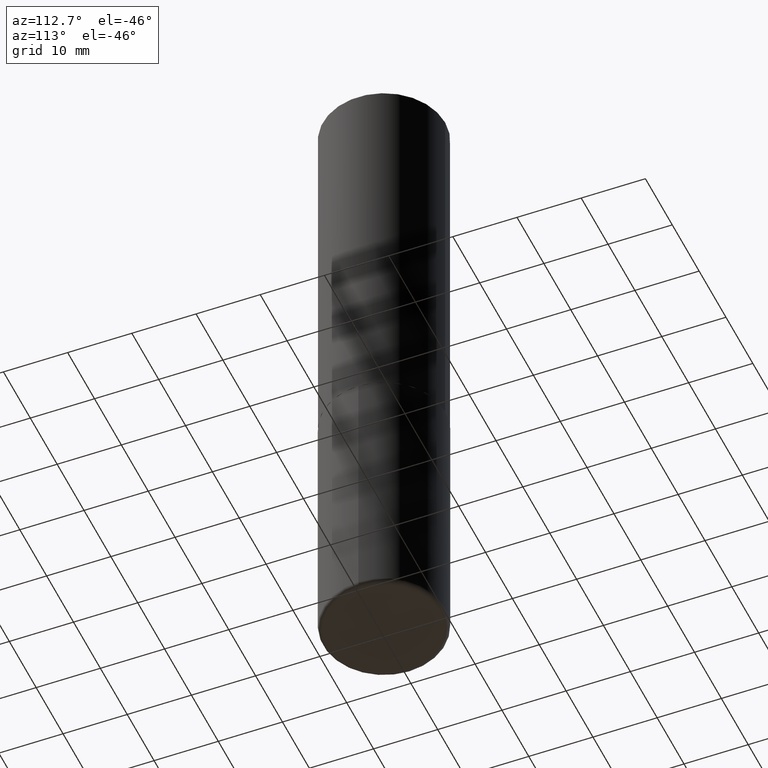
[diagram: clean part render]
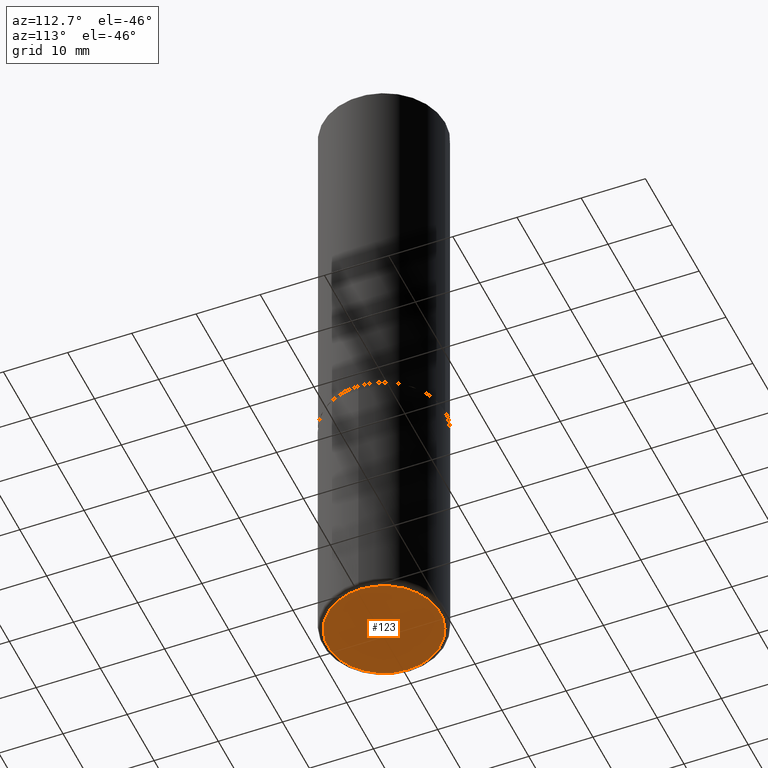
[diagram: same view with one face highlighted and labeled with its STEP entity id]
A machine part, auxiliary view. The second image highlights one B-rep face of the part: STEP entity #123.
In plain terms, the highlighted planar face has unit normal (0, -0, -1).
Its self-contained STEP definition (entity closure, byte-faithful):
#7 = CARTESIAN_POINT ( 'NONE',  ( 9.781875224740546387E-29, -1.396592535537258233E-14, -4.000000000000000000 ) ) ;
#32 = CARTESIAN_POINT ( 'NONE',  ( 9.781875224740546387E-29, -1.396592535537258233E-14, -4.000000000000000000 ) ) ;
#36 = AXIS2_PLACEMENT_3D ( 'NONE', #7, #137, #337 ) ;
#47 = EDGE_LOOP ( 'NONE', ( #170, #273 ) ) ;
#89 = CARTESIAN_POINT ( 'NONE',  ( -0.3450000000000000289, -1.135559928655357428E-14, -4.000000000000000000 ) ) ;
#123 = ADVANCED_FACE ( 'NONE', ( #324 ), #231, .T. ) ;
#126 = EDGE_CURVE ( 'NONE', #308, #183, #395, .T. ) ;
#137 = DIRECTION ( 'NONE',  ( -2.445468806185136597E-29, 3.491481338843145583E-15, 1.000000000000000000 ) ) ;
#146 = CARTESIAN_POINT ( 'NONE',  ( 9.781875224740546387E-29, -1.396592535537258233E-14, -4.000000000000000000 ) ) ;
#170 = ORIENTED_EDGE ( 'NONE', *, *, #224, .F. ) ;
#173 = DIRECTION ( 'NONE',  ( 2.438088387897960049E-29, -3.491481338843145188E-15, -1.000000000000000000 ) ) ;
#183 = VERTEX_POINT ( 'NONE', #330 ) ;
#224 = EDGE_CURVE ( 'NONE', #183, #308, #236, .T. ) ;
#231 = PLANE ( 'NONE',  #300 ) ;
#236 = CIRCLE ( 'NONE', #245, 0.3450000000000000289 ) ;
#245 = AXIS2_PLACEMENT_3D ( 'NONE', #32, #265, #323 ) ;
#265 = DIRECTION ( 'NONE',  ( -2.445468806185136597E-29, 3.491481338843145583E-15, 1.000000000000000000 ) ) ;
#273 = ORIENTED_EDGE ( 'NONE', *, *, #126, .F. ) ;
#300 = AXIS2_PLACEMENT_3D ( 'NONE', #146, #173, #374 ) ;
#308 = VERTEX_POINT ( 'NONE', #89 ) ;
#323 = DIRECTION ( 'NONE',  ( 1.000000000000000000, -6.982962677686267499E-15, 0.000000000000000000 ) ) ;
#324 = FACE_OUTER_BOUND ( 'NONE', #47, .T. ) ;
#330 = CARTESIAN_POINT ( 'NONE',  ( 0.3450000000000000289, -1.637504747917434403E-14, -4.000000000000000000 ) ) ;
#337 = DIRECTION ( 'NONE',  ( 1.000000000000000000, -6.982962677686267499E-15, 0.000000000000000000 ) ) ;
#374 = DIRECTION ( 'NONE',  ( -1.000000000000000000, 6.982962677686265922E-15, -4.876176775795935793E-29 ) ) ;
#395 = CIRCLE ( 'NONE', #36, 0.3450000000000000289 ) ;